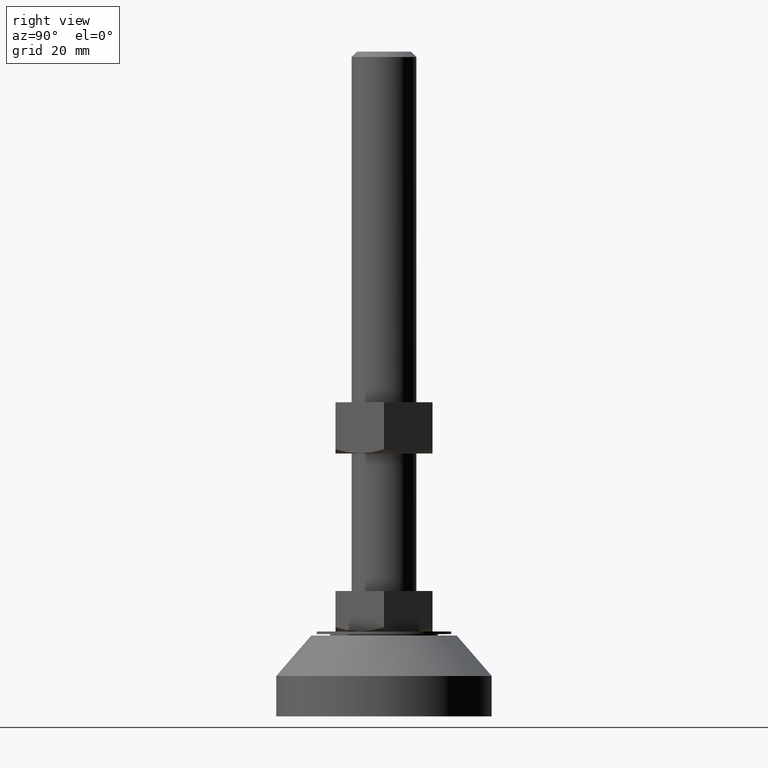
[diagram: clean part render]
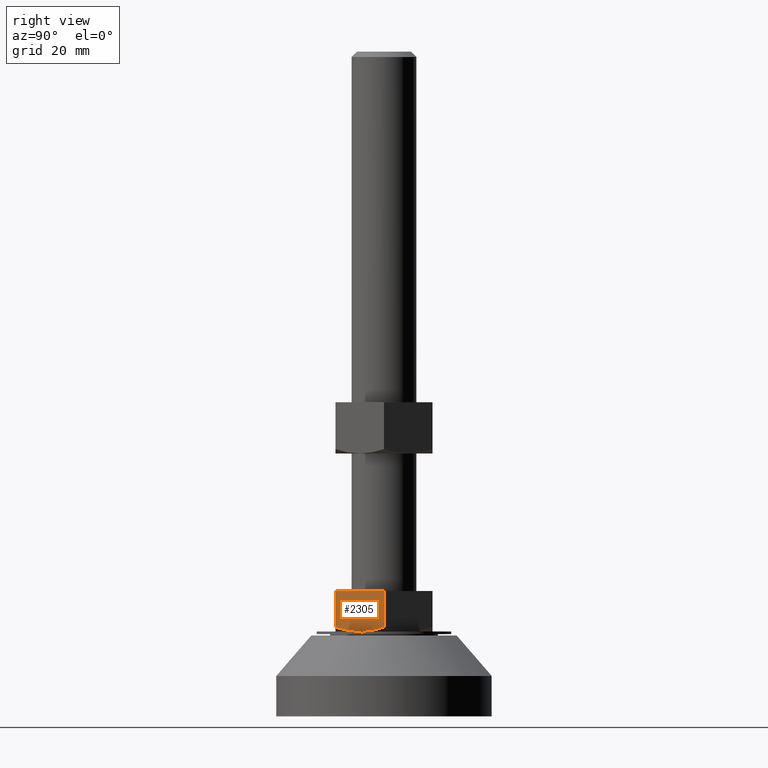
[diagram: same view with one face highlighted and labeled with its STEP entity id]
A machine part, right view. The second image highlights one B-rep face of the part: STEP entity #2305.
In plain terms, the highlighted face is a freeform B-spline surface patch.
Its self-contained STEP definition (entity closure, byte-faithful):
#2202=CARTESIAN_POINT('',(10.392304845413500,-18.0,46.500000000000000));
#2203=VERTEX_POINT('',#2202);
#2204=CARTESIAN_POINT('',(20.784609690826851,0.0,46.500000000000000));
#2205=VERTEX_POINT('',#2204);
#2206=CARTESIAN_POINT('',(10.392304845413500,-18.0,46.500000000000000));
#2207=CARTESIAN_POINT('',(20.784609690826851,0.0,46.500000000000000));
#2208=QUASI_UNIFORM_CURVE('',1,(#2206,#2207),.UNSPECIFIED.,.F.,.U.);
#2209=EDGE_CURVE('',#2203,#2205,#2208,.T.);
#2253=CARTESIAN_POINT('',(21.303705297712980,0.899099965112485,30.750750029072911));
#2254=CARTESIAN_POINT('',(9.873208959784178,-18.899100447910200,30.750750029072911));
#2255=CARTESIAN_POINT('',(21.303705297712980,0.899099965112485,47.249250373258441));
#2256=CARTESIAN_POINT('',(9.873208959784178,-18.899100447910200,47.249250373258441));
#2257=B_SPLINE_SURFACE_WITH_KNOTS('',1,1,((#2253,#2255),(#2254,#2256)),.UNSPECIFIED.,.F.,.F.,.U.,(2,2),(2,2),(0.0,22.860992675857609),(0.0,16.498500344185530),.UNSPECIFIED.);
#2258=CARTESIAN_POINT('',(20.784609691077652,-4.343956E-010,33.107695154885853));
#2259=VERTEX_POINT('',#2258);
#2260=CARTESIAN_POINT('',(15.588457268120150,-9.000000000000149,31.500000000000000));
#2261=VERTEX_POINT('',#2260);
#2262=CARTESIAN_POINT('',(20.784609691077652,-4.343956E-010,33.107695154885853));
#2263=CARTESIAN_POINT('',(19.936176361895662,-1.469529632543715,32.617851943898621));
#2264=CARTESIAN_POINT('',(19.081557465811080,-2.949772981670631,32.214132543158058));
#2265=CARTESIAN_POINT('',(17.786261838703510,-5.193290818642727,31.794670784412840));
#2266=CARTESIAN_POINT('',(17.352263406716759,-5.944998153249014,31.685944140077030));
#2267=CARTESIAN_POINT('',(16.479212292082540,-7.457167041400104,31.538862945867471));
#2268=CARTESIAN_POINT('',(16.040155242060340,-8.217636159459865,31.500569204475291));
#2269=CARTESIAN_POINT('',(15.595078103113529,-8.988532377403146,31.500002109278281));
#2270=CARTESIAN_POINT('',(15.591767761347290,-8.994266057532689,31.500000000847081));
#2271=CARTESIAN_POINT('',(15.588457268057891,-9.000000000108058,31.500000002125770));
#2272=B_SPLINE_CURVE_WITH_KNOTS('',3,(#2262,#2263,#2264,#2265,#2266,#2267,#2268,#2269,#2270,#2271),.UNSPECIFIED.,.F.,.U.,(4,2,2,2,4),(0.0,0.250000000000001,0.375000000000001,0.500000000000002,0.500936633638547),.UNSPECIFIED.);
#2273=EDGE_CURVE('',#2259,#2261,#2272,.T.);
#2274=ORIENTED_EDGE('',*,*,#2273,.F.);
#2275=CARTESIAN_POINT('',(20.784609690826851,0.0,46.500000000000000));
#2276=CARTESIAN_POINT('',(20.784609691077652,-4.343956E-010,33.107695154885853));
#2277=QUASI_UNIFORM_CURVE('',1,(#2275,#2276),.UNSPECIFIED.,.F.,.U.);
#2278=EDGE_CURVE('',#2205,#2259,#2277,.T.);
#2279=ORIENTED_EDGE('',*,*,#2278,.F.);
#2280=ORIENTED_EDGE('',*,*,#2209,.F.);
#2281=CARTESIAN_POINT('',(10.392304845915540,-18.0,33.107695154885853));
#2282=VERTEX_POINT('',#2281);
#2283=CARTESIAN_POINT('',(10.392304845413500,-18.0,46.500000000000000));
#2284=CARTESIAN_POINT('',(10.392304845915540,-18.0,33.107695154885853));
#2285=QUASI_UNIFORM_CURVE('',1,(#2283,#2284),.UNSPECIFIED.,.F.,.U.);
#2286=EDGE_CURVE('',#2203,#2282,#2285,.T.);
#2287=ORIENTED_EDGE('',*,*,#2286,.T.);
#2288=CARTESIAN_POINT('',(15.588457268120150,-9.000000000000149,31.500000000000000));
#2289=CARTESIAN_POINT('',(15.481315914241470,-9.185574268509809,31.500000043512660));
#2290=CARTESIAN_POINT('',(15.374015849348281,-9.371423432560238,31.502209877791611));
#2291=CARTESIAN_POINT('',(15.155775716466289,-9.749426430962439,31.511217426491680));
#2292=CARTESIAN_POINT('',(15.045003729702360,-9.941289140092914,31.518151183919951));
#2293=CARTESIAN_POINT('',(14.713509541245040,-10.515453916914810,31.545891086851199));
#2294=CARTESIAN_POINT('',(14.493281237305210,-10.896900528603309,31.573655188447379));
#2295=CARTESIAN_POINT('',(13.834800101227840,-12.037423312114990,31.683556322946469));
#2296=CARTESIAN_POINT('',(13.398756197129380,-12.792673508344210,31.792364395425249));
#2297=CARTESIAN_POINT('',(12.098387641954639,-15.044977914471801,32.212522526839749));
#2298=CARTESIAN_POINT('',(11.241795898921209,-16.528638334749679,32.617241266329621));
#2299=CARTESIAN_POINT('',(10.392304845521950,-17.999999999812410,33.107695154678517));
#2300=B_SPLINE_CURVE_WITH_KNOTS('',3,(#2288,#2289,#2290,#2291,#2292,#2293,#2294,#2295,#2296,#2297,#2298,#2299),.UNSPECIFIED.,.F.,.U.,(4,2,2,2,2,4),(0.500936633660390,0.531250000000002,0.562500000000002,0.625000000000002,0.750000000000001,1.0),.UNSPECIFIED.);
#2301=EDGE_CURVE('',#2261,#2282,#2300,.T.);
#2302=ORIENTED_EDGE('',*,*,#2301,.F.);
#2303=EDGE_LOOP('',(#2274,#2279,#2280,#2287,#2302));
#2304=FACE_OUTER_BOUND('',#2303,.T.);
#2305=ADVANCED_FACE('',(#2304),#2257,.F.);